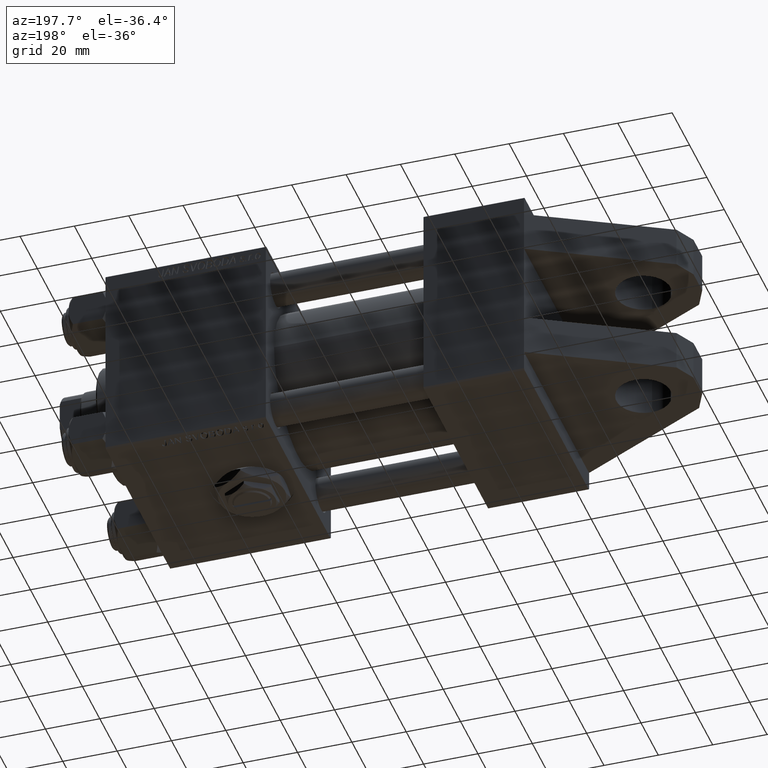
[diagram: clean part render]
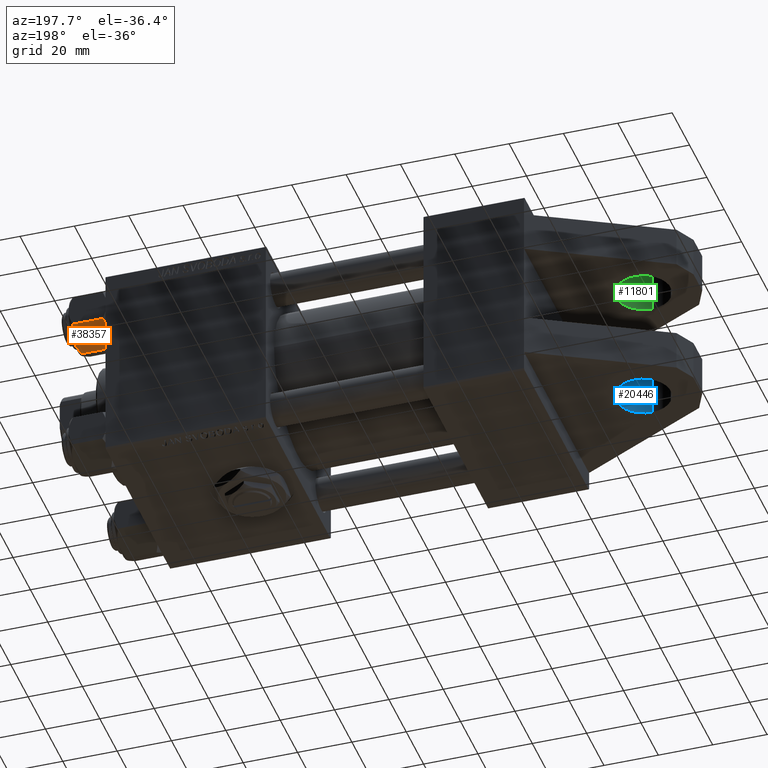
[diagram: same view with three faces highlighted in distinct colors, each labeled with its STEP entity id]
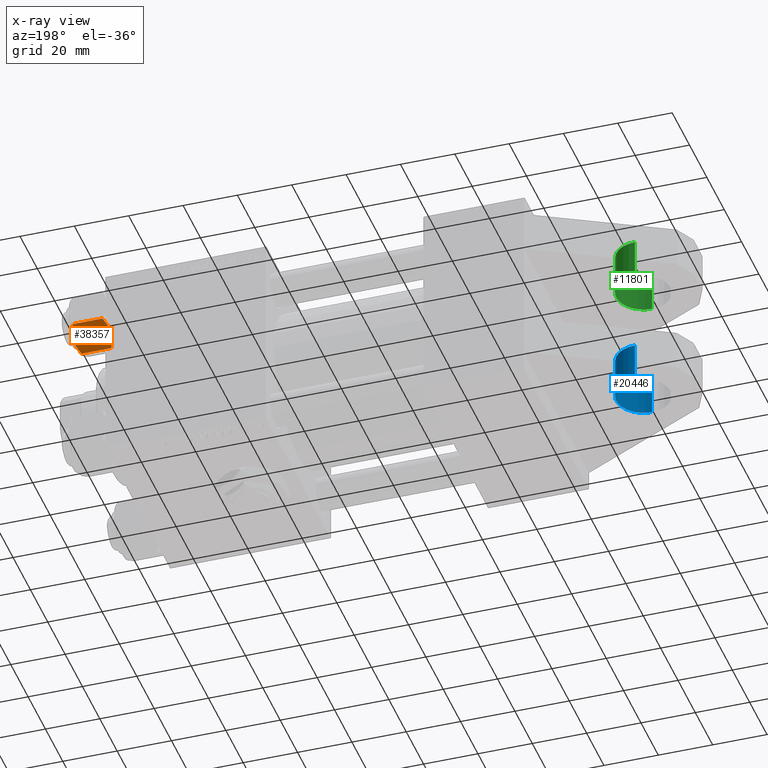
[diagram: x-ray of the same camera — body ghosted, the three highlighted faces saturated]
A machine part, auxiliary view with three faces highlighted in distinct colors.
The next image is the same camera in x-ray (body ghosted, the three faces saturated) — at least one of them is partly hidden behind the body in this view.
Their STEP definitions:

[orange] entity #38357 — the highlighted planar face has unit normal (0, -0.5, 0.866).
#46 = B_SPLINE_CURVE_WITH_KNOTS ( 'NONE', 3,
 ( #22454, #3196, #34926, #22194, #10246, #41939, #14908, #42451, #26621 ),
 .UNSPECIFIED., .F., .F.,
 ( 4, 2, 1, 2, 4 ),
 ( 0.02074012592819901232, 0.02149589804477577970, 0.02225167016135254361, 0.02376321439450607489, 0.02678630286081313400 ),
 .UNSPECIFIED. ) ;
#144 = LINE ( 'NONE', #42334, #46436 ) ;
#224 = LINE ( 'NONE', #44390, #37853 ) ;
#560 = CARTESIAN_POINT ( 'NONE',  ( -0.5112014849988875120, 10.06321519197518199, -0.009803979428912690947 ) ) ;
#677 = CARTESIAN_POINT ( 'NONE',  ( 4.900668367960795635, 10.06321519197518199, -1.121556683709773239 ) ) ;
#941 = CARTESIAN_POINT ( 'NONE',  ( 0.000000000000000000, 10.06321519197518022, 0.000000000000000000 ) ) ;
#1764 = CARTESIAN_POINT ( 'NONE',  ( 5.810000000000000497, 10.06321519197518022, -12.44321519197518278 ) ) ;
#3196 = CARTESIAN_POINT ( 'NONE',  ( 0.2543996698847478255, 10.06321519197517844, -14.00000000000000000 ) ) ;
#3831 = VERTEX_POINT ( 'NONE', #50471 ) ;
#4869 = VERTEX_POINT ( 'NONE', #43154 ) ;
#4906 = DIRECTION ( 'NONE',  ( -0.000000000000000000, -0.000000000000000000, 1.000000000000000000 ) ) ;
#7280 = VERTEX_POINT ( 'NONE', #10283 ) ;
#8413 = CARTESIAN_POINT ( 'NONE',  ( -2.013954290287967019, 10.06321519197518022, -13.84298883202399821 ) ) ;
#8484 = CARTESIAN_POINT ( 'NONE',  ( 5.810000000000000497, 10.06321519197518022, -1.556784808024815892 ) ) ;
#8621 = CARTESIAN_POINT ( 'NONE',  ( 0.000000000000000000, 10.06321519197518022, 0.000000000000000000 ) ) ;
#8731 = CARTESIAN_POINT ( 'NONE',  ( 2.013954290287966575, 10.06321519197518022, -0.1570111679759973733 ) ) ;
#9853 = B_SPLINE_CURVE_WITH_KNOTS ( 'NONE', 3,
 ( #8484, #24339, #677, #40451, #16544, #8731, #24603, #941 ),
 .UNSPECIFIED., .F., .F.,
 ( 4, 2, 2, 4 ),
 ( 0.01467889604968878811, 0.01619420351931634416, 0.01770951098894390369, 0.02074012592819901579 ),
 .UNSPECIFIED. ) ;
#10246 = CARTESIAN_POINT ( 'NONE',  ( 1.772424303831127146, 10.06321519197517667, -13.86611290782775896 ) ) ;
#10283 = CARTESIAN_POINT ( 'NONE',  ( -5.809999999999997833, 10.06321519197518022, -1.556784808024814115 ) ) ;
#11034 = EDGE_CURVE ( 'NONE', #29185, #29431, #46, .T. ) ;
#11540 = CARTESIAN_POINT ( 'NONE',  ( -5.359707691559671083, 10.06321519197517844, -12.66836134619534526 ) ) ;
#13517 = PLANE ( 'NONE',  #23638 ) ;
#14908 = CARTESIAN_POINT ( 'NONE',  ( 3.960942496020600778, 10.06321519197518022, -13.28842716763895737 ) ) ;
#14983 = EDGE_CURVE ( 'NONE', #46657, #4869, #9853, .T. ) ;
#15320 = EDGE_CURVE ( 'NONE', #3831, #7280, #144, .T. ) ;
#16544 = CARTESIAN_POINT ( 'NONE',  ( 3.474497094393252272, 10.06321519197518022, -0.5726960901042741359 ) ) ;
#16944 = CARTESIAN_POINT ( 'NONE',  ( -1.772424303831120929, 10.06321519197518022, -0.1338870921722370433 ) ) ;
#17045 = B_SPLINE_CURVE_WITH_KNOTS ( 'NONE', 3,
 ( #8621, #21361, #560, #24478, #16944, #49134, #25522, #40855, #20590 ),
 .UNSPECIFIED., .F., .F.,
 ( 4, 2, 1, 2, 4 ),
 ( 0.02074012592819901579, 0.02149589804477577970, 0.02225167016135254361, 0.02376321439450607489, 0.02678630286081313400 ),
 .UNSPECIFIED. ) ;
#17681 = DIRECTION ( 'NONE',  ( 0.000000000000000000, -1.000000000000000000, 0.000000000000000000 ) ) ;
#19899 = EDGE_LOOP ( 'NONE', ( #32434, #33596, #28790, #39509, #33579, #31859 ) ) ;
#20369 = CARTESIAN_POINT ( 'NONE',  ( 0.000000000000000000, 10.06321519197518022, -14.00000000000000000 ) ) ;
#20590 = CARTESIAN_POINT ( 'NONE',  ( -5.809999999999997833, 10.06321519197518022, -1.556784808024814115 ) ) ;
#21065 = FACE_OUTER_BOUND ( 'NONE', #19899, .T. ) ;
#21320 = DIRECTION ( 'NONE',  ( 0.000000000000000000, -0.000000000000000000, -1.000000000000000000 ) ) ;
#21361 = CARTESIAN_POINT ( 'NONE',  ( -0.2543996698847471039, 10.06321519197517844, 1.789568859311522647E-15 ) ) ;
#21727 = B_SPLINE_CURVE_WITH_KNOTS ( 'NONE', 3,
 ( #27147, #11540, #39351, #35973, #39605, #8413, #47633, #20369 ),
 .UNSPECIFIED., .F., .F.,
 ( 4, 2, 2, 4 ),
 ( 0.01467889604968878464, 0.01619420351931634069, 0.01770951098894389675, 0.02074012592819901232 ),
 .UNSPECIFIED. ) ;
#22194 = CARTESIAN_POINT ( 'NONE',  ( 1.018274738099083976, 10.06321519197517844, -13.95177257919928948 ) ) ;
#22454 = CARTESIAN_POINT ( 'NONE',  ( 0.000000000000000000, 10.06321519197518022, -14.00000000000000000 ) ) ;
#23638 = AXIS2_PLACEMENT_3D ( 'NONE', #41064, #17681, #21320 ) ;
#24339 = CARTESIAN_POINT ( 'NONE',  ( 5.359707691559672860, 10.06321519197517844, -1.331638653804651629 ) ) ;
#24478 = CARTESIAN_POINT ( 'NONE',  ( -1.018274738099083310, 10.06321519197517667, -0.04822742080070820114 ) ) ;
#24603 = CARTESIAN_POINT ( 'NONE',  ( 1.020132157807626561, 10.06321519197517844, 1.504330514323637599E-15 ) ) ;
#25522 = CARTESIAN_POINT ( 'NONE',  ( -3.960942496020600778, 10.06321519197518199, -0.7115728323610410744 ) ) ;
#26246 = CARTESIAN_POINT ( 'NONE',  ( 5.810000000000000497, 10.06321519197518022, -1.556784808024815892 ) ) ;
#26621 = CARTESIAN_POINT ( 'NONE',  ( 5.810000000000000497, 10.06321519197518022, -12.44321519197518278 ) ) ;
#27147 = CARTESIAN_POINT ( 'NONE',  ( -5.809999999999997833, 10.06321519197518022, -12.44321519197518455 ) ) ;
#28790 = ORIENTED_EDGE ( 'NONE', *, *, #36426, .F. ) ;
#29185 = VERTEX_POINT ( 'NONE', #36325 ) ;
#29431 = VERTEX_POINT ( 'NONE', #1764 ) ;
#30183 = EDGE_CURVE ( 'NONE', #29431, #46657, #224, .T. ) ;
#30825 = EDGE_CURVE ( 'NONE', #3831, #29185, #21727, .T. ) ;
#31859 = ORIENTED_EDGE ( 'NONE', *, *, #11034, .F. ) ;
#31868 = DIRECTION ( 'NONE',  ( -0.000000000000000000, -0.000000000000000000, 1.000000000000000000 ) ) ;
#32434 = ORIENTED_EDGE ( 'NONE', *, *, #30825, .F. ) ;
#33579 = ORIENTED_EDGE ( 'NONE', *, *, #30183, .F. ) ;
#33596 = ORIENTED_EDGE ( 'NONE', *, *, #15320, .T. ) ;
#34926 = CARTESIAN_POINT ( 'NONE',  ( 0.5112014849988876231, 10.06321519197518022, -13.99019602057108536 ) ) ;
#35973 = CARTESIAN_POINT ( 'NONE',  ( -3.958929922320416850, 10.06321519197517844, -13.25786014976459803 ) ) ;
#36325 = CARTESIAN_POINT ( 'NONE',  ( 0.000000000000000000, 10.06321519197518022, -14.00000000000000000 ) ) ;
#36426 = EDGE_CURVE ( 'NONE', #4869, #7280, #17045, .T. ) ;
#37853 = VECTOR ( 'NONE', #4906, 1000.000000000000000 ) ;
#38357 = ADVANCED_FACE ( 'NONE', ( #21065 ), #13517, .F. ) ;
#39351 = CARTESIAN_POINT ( 'NONE',  ( -4.900668367960792082, 10.06321519197518199, -12.87844331629022676 ) ) ;
#39509 = ORIENTED_EDGE ( 'NONE', *, *, #14983, .F. ) ;
#39605 = CARTESIAN_POINT ( 'NONE',  ( -3.474497094393252716, 10.06321519197518022, -13.42730390989572342 ) ) ;
#40451 = CARTESIAN_POINT ( 'NONE',  ( 3.958929922320420403, 10.06321519197517844, -0.7421398502353995230 ) ) ;
#40855 = CARTESIAN_POINT ( 'NONE',  ( -4.908816193182376608, 10.06321519197518199, -1.106192904616006167 ) ) ;
#41064 = CARTESIAN_POINT ( 'NONE',  ( -5.809999999999997833, 10.06321519197518022, -14.00000000000000000 ) ) ;
#41939 = CARTESIAN_POINT ( 'NONE',  ( 2.508586450168038162, 10.06321519197517844, -13.70242473679676642 ) ) ;
#42334 = CARTESIAN_POINT ( 'NONE',  ( -5.809999999999997833, 10.06321519197518022, -14.00000000000000000 ) ) ;
#42451 = CARTESIAN_POINT ( 'NONE',  ( 4.908816193182378385, 10.06321519197517667, -12.89380709538398939 ) ) ;
#43154 = CARTESIAN_POINT ( 'NONE',  ( 0.000000000000000000, 10.06321519197518022, 0.000000000000000000 ) ) ;
#44390 = CARTESIAN_POINT ( 'NONE',  ( 5.810000000000000497, 10.06321519197518022, -14.00000000000000000 ) ) ;
#46436 = VECTOR ( 'NONE', #31868, 1000.000000000000000 ) ;
#46657 = VERTEX_POINT ( 'NONE', #26246 ) ;
#47633 = CARTESIAN_POINT ( 'NONE',  ( -1.020132157807625006, 10.06321519197517844, -13.99999999999999822 ) ) ;
#49134 = CARTESIAN_POINT ( 'NONE',  ( -2.508586450168038162, 10.06321519197518199, -0.2975752632032285794 ) ) ;
#50471 = CARTESIAN_POINT ( 'NONE',  ( -5.809999999999997833, 10.06321519197518022, -12.44321519197518455 ) ) ;

[blue] entity #20446 — the highlighted cylindrical surface (edge-blend (fillet) strip) has radius 10 mm, axis along (-0, -0, 1).
#1389 = FACE_OUTER_BOUND ( 'NONE', #31316, .T. ) ;
#1910 = CYLINDRICAL_SURFACE ( 'NONE', #11139, 10.00000000000000000 ) ;
#2434 = CARTESIAN_POINT ( 'NONE',  ( -32.00000000000000000, 30.00000000000000000, 9.999999999999992895 ) ) ;
#3115 = VERTEX_POINT ( 'NONE', #33769 ) ;
#3542 = EDGE_CURVE ( 'NONE', #10377, #3115, #30004, .T. ) ;
#5247 = DIRECTION ( 'NONE',  ( -0.000000000000000000, -1.000000000000000000, -0.000000000000000000 ) ) ;
#9153 = LINE ( 'NONE', #16951, #35649 ) ;
#9169 = ORIENTED_EDGE ( 'NONE', *, *, #3542, .F. ) ;
#9472 = DIRECTION ( 'NONE',  ( -0.000000000000000000, -1.000000000000000000, -0.000000000000000000 ) ) ;
#9685 = CARTESIAN_POINT ( 'NONE',  ( -32.00000000000000000, 30.00000000000000000, -6.938893903907228378E-15 ) ) ;
#10377 = VERTEX_POINT ( 'NONE', #11641 ) ;
#10734 = ORIENTED_EDGE ( 'NONE', *, *, #25277, .T. ) ;
#11139 = AXIS2_PLACEMENT_3D ( 'NONE', #29730, #37786, #45562 ) ;
#11641 = CARTESIAN_POINT ( 'NONE',  ( -32.00000000000000000, 30.00000000000000000, 9.999999999999992895 ) ) ;
#13253 = CIRCLE ( 'NONE', #40662, 10.00000000000000000 ) ;
#14111 = DIRECTION ( 'NONE',  ( 0.000000000000000000, 0.000000000000000000, 1.000000000000000000 ) ) ;
#16951 = CARTESIAN_POINT ( 'NONE',  ( -32.00000000000000000, 30.00000000000000000, -10.00000000000000711 ) ) ;
#17960 = CARTESIAN_POINT ( 'NONE',  ( -32.00000000000000000, 15.00000000000000000, -10.00000000000000711 ) ) ;
#20446 = ADVANCED_FACE ( 'NONE', ( #1389 ), #1910, .F. ) ;
#24133 = CARTESIAN_POINT ( 'NONE',  ( -32.00000000000000000, 30.00000000000000000, -10.00000000000000711 ) ) ;
#24760 = DIRECTION ( 'NONE',  ( 0.000000000000000000, 1.000000000000000000, 0.000000000000000000 ) ) ;
#25277 = EDGE_CURVE ( 'NONE', #41251, #36596, #9153, .T. ) ;
#25280 = EDGE_CURVE ( 'NONE', #3115, #36596, #13253, .T. ) ;
#29296 = ORIENTED_EDGE ( 'NONE', *, *, #25280, .F. ) ;
#29730 = CARTESIAN_POINT ( 'NONE',  ( -32.00000000000000000, 30.00000000000000000, -6.938893903907228378E-15 ) ) ;
#30004 = LINE ( 'NONE', #2434, #32037 ) ;
#31316 = EDGE_LOOP ( 'NONE', ( #9169, #49336, #10734, #29296 ) ) ;
#32037 = VECTOR ( 'NONE', #9472, 1000.000000000000000 ) ;
#32316 = AXIS2_PLACEMENT_3D ( 'NONE', #9685, #33613, #14111 ) ;
#32815 = DIRECTION ( 'NONE',  ( 0.000000000000000000, 0.000000000000000000, 1.000000000000000000 ) ) ;
#33613 = DIRECTION ( 'NONE',  ( 0.000000000000000000, 1.000000000000000000, 0.000000000000000000 ) ) ;
#33769 = CARTESIAN_POINT ( 'NONE',  ( -32.00000000000000000, 15.00000000000000000, 9.999999999999992895 ) ) ;
#35649 = VECTOR ( 'NONE', #5247, 1000.000000000000000 ) ;
#36596 = VERTEX_POINT ( 'NONE', #17960 ) ;
#36716 = CARTESIAN_POINT ( 'NONE',  ( -32.00000000000000000, 15.00000000000000000, -6.938893903907228378E-15 ) ) ;
#37786 = DIRECTION ( 'NONE',  ( -0.000000000000000000, -1.000000000000000000, -0.000000000000000000 ) ) ;
#40662 = AXIS2_PLACEMENT_3D ( 'NONE', #36716, #24760, #32815 ) ;
#41251 = VERTEX_POINT ( 'NONE', #24133 ) ;
#44380 = EDGE_CURVE ( 'NONE', #10377, #41251, #48900, .T. ) ;
#45562 = DIRECTION ( 'NONE',  ( 0.000000000000000000, 0.000000000000000000, -1.000000000000000000 ) ) ;
#48900 = CIRCLE ( 'NONE', #32316, 10.00000000000000000 ) ;
#49336 = ORIENTED_EDGE ( 'NONE', *, *, #44380, .T. ) ;

[green] entity #11801 — the highlighted cylindrical surface (edge-blend (fillet) strip) has radius 10 mm, axis along (0, 0, -1).
#1418 = CARTESIAN_POINT ( 'NONE',  ( -32.00000000000000000, -30.00000000000000000, -6.938893903907228378E-15 ) ) ;
#2437 = VERTEX_POINT ( 'NONE', #4593 ) ;
#2733 = EDGE_LOOP ( 'NONE', ( #36831, #8737, #6873, #37977 ) ) ;
#4593 = CARTESIAN_POINT ( 'NONE',  ( -32.00000000000000000, -30.00000000000000000, -10.00000000000000711 ) ) ;
#5331 = DIRECTION ( 'NONE',  ( -0.000000000000000000, 1.000000000000000000, -0.000000000000000000 ) ) ;
#5723 = VERTEX_POINT ( 'NONE', #30453 ) ;
#5860 = DIRECTION ( 'NONE',  ( -0.000000000000000000, 1.000000000000000000, -0.000000000000000000 ) ) ;
#6475 = CARTESIAN_POINT ( 'NONE',  ( -32.00000000000000000, -30.00000000000000000, -10.00000000000000711 ) ) ;
#6873 = ORIENTED_EDGE ( 'NONE', *, *, #48055, .T. ) ;
#8204 = CARTESIAN_POINT ( 'NONE',  ( -32.00000000000000000, -30.00000000000000000, 9.999999999999992895 ) ) ;
#8737 = ORIENTED_EDGE ( 'NONE', *, *, #47301, .F. ) ;
#9485 = CYLINDRICAL_SURFACE ( 'NONE', #34695, 10.00000000000000000 ) ;
#9742 = DIRECTION ( 'NONE',  ( 0.000000000000000000, 0.000000000000000000, 1.000000000000000000 ) ) ;
#9962 = DIRECTION ( 'NONE',  ( -0.000000000000000000, 1.000000000000000000, -0.000000000000000000 ) ) ;
#11780 = VERTEX_POINT ( 'NONE', #19635 ) ;
#11801 = ADVANCED_FACE ( 'NONE', ( #14164 ), #9485, .F. ) ;
#11841 = LINE ( 'NONE', #6475, #19078 ) ;
#11848 = LINE ( 'NONE', #8204, #14856 ) ;
#14073 = EDGE_CURVE ( 'NONE', #18012, #11780, #32297, .T. ) ;
#14164 = FACE_OUTER_BOUND ( 'NONE', #2733, .T. ) ;
#14856 = VECTOR ( 'NONE', #40436, 1000.000000000000000 ) ;
#15448 = EDGE_CURVE ( 'NONE', #2437, #11780, #11841, .T. ) ;
#16204 = CARTESIAN_POINT ( 'NONE',  ( -32.00000000000000000, -15.00000000000000000, 9.999999999999992895 ) ) ;
#18012 = VERTEX_POINT ( 'NONE', #16204 ) ;
#19078 = VECTOR ( 'NONE', #28488, 1000.000000000000000 ) ;
#19635 = CARTESIAN_POINT ( 'NONE',  ( -32.00000000000000000, -15.00000000000000000, -10.00000000000000711 ) ) ;
#21194 = CARTESIAN_POINT ( 'NONE',  ( -32.00000000000000000, -30.00000000000000000, -6.938893903907228378E-15 ) ) ;
#21451 = DIRECTION ( 'NONE',  ( 0.000000000000000000, 0.000000000000000000, 1.000000000000000000 ) ) ;
#25671 = AXIS2_PLACEMENT_3D ( 'NONE', #42650, #9962, #38019 ) ;
#28488 = DIRECTION ( 'NONE',  ( -0.000000000000000000, 1.000000000000000000, -0.000000000000000000 ) ) ;
#30453 = CARTESIAN_POINT ( 'NONE',  ( -32.00000000000000000, -30.00000000000000000, 9.999999999999992895 ) ) ;
#32297 = CIRCLE ( 'NONE', #25671, 10.00000000000000000 ) ;
#34057 = CIRCLE ( 'NONE', #44829, 10.00000000000000000 ) ;
#34695 = AXIS2_PLACEMENT_3D ( 'NONE', #21194, #5331, #21451 ) ;
#36831 = ORIENTED_EDGE ( 'NONE', *, *, #15448, .F. ) ;
#37977 = ORIENTED_EDGE ( 'NONE', *, *, #14073, .T. ) ;
#38019 = DIRECTION ( 'NONE',  ( 0.000000000000000000, 0.000000000000000000, 1.000000000000000000 ) ) ;
#40436 = DIRECTION ( 'NONE',  ( -0.000000000000000000, 1.000000000000000000, -0.000000000000000000 ) ) ;
#42650 = CARTESIAN_POINT ( 'NONE',  ( -32.00000000000000000, -15.00000000000000000, -6.938893903907228378E-15 ) ) ;
#44829 = AXIS2_PLACEMENT_3D ( 'NONE', #1418, #5860, #9742 ) ;
#47301 = EDGE_CURVE ( 'NONE', #5723, #2437, #34057, .T. ) ;
#48055 = EDGE_CURVE ( 'NONE', #5723, #18012, #11848, .T. ) ;